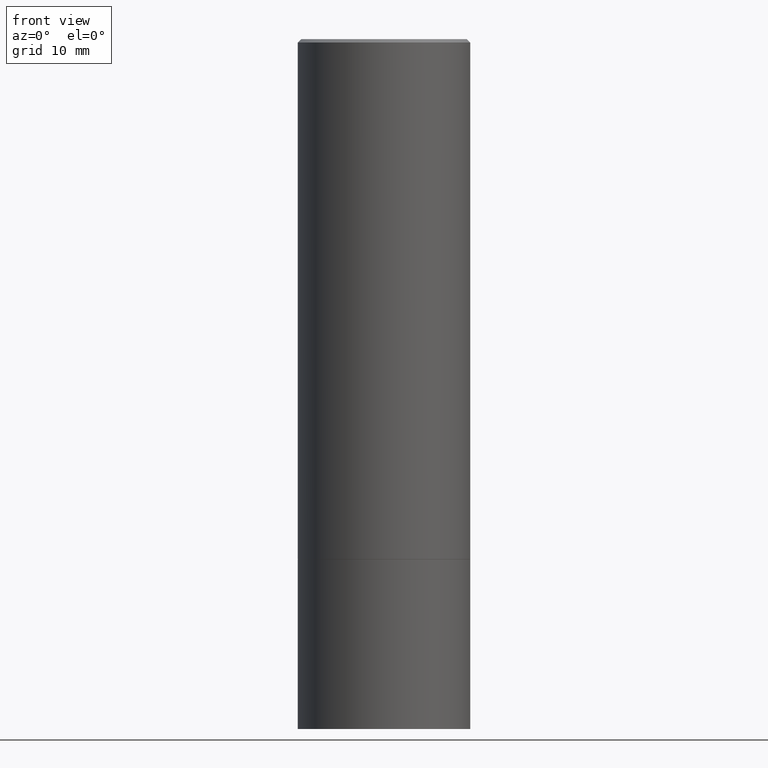
[diagram: clean part render]
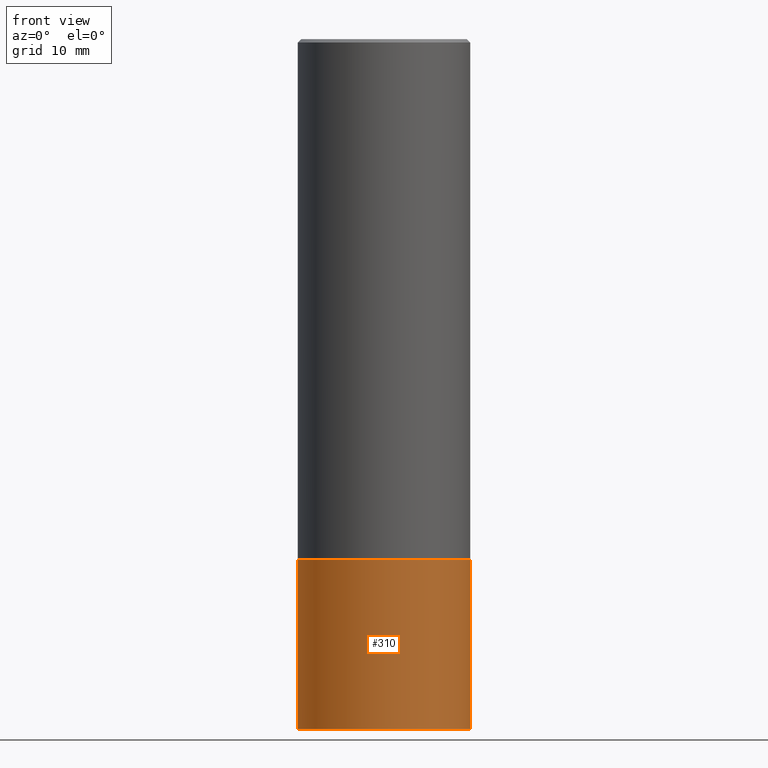
[diagram: same view with one face highlighted and labeled with its STEP entity id]
A machine part, front view. The second image highlights one B-rep face of the part: STEP entity #310.
In plain terms, the highlighted cylindrical surface (partial cylindrical patch) has radius 12.7 mm, axis along (-0, 0, 1).
Its self-contained STEP definition (entity closure, byte-faithful):
#11 = FACE_OUTER_BOUND ( 'NONE', #82, .T. ) ;
#12 = DIRECTION ( 'NONE',  ( -2.445468806185136597E-29, 3.491481338843145583E-15, 1.000000000000000000 ) ) ;
#46 = VERTEX_POINT ( 'NONE', #147 ) ;
#58 = DIRECTION ( 'NONE',  ( -2.445468806185136877E-29, 3.491481338843145188E-15, 1.000000000000000000 ) ) ;
#59 = CIRCLE ( 'NONE', #187, 0.5000000000000000000 ) ;
#65 = EDGE_CURVE ( 'NONE', #288, #200, #179, .T. ) ;
#82 = EDGE_LOOP ( 'NONE', ( #362, #371, #300, #386 ) ) ;
#90 = DIRECTION ( 'NONE',  ( -2.445468806185136597E-29, 3.491481338843145583E-15, 1.000000000000000000 ) ) ;
#102 = EDGE_CURVE ( 'NONE', #46, #288, #237, .T. ) ;
#126 = DIRECTION ( 'NONE',  ( 1.000000000000000000, -6.982962677686266711E-15, 4.876176775795935793E-29 ) ) ;
#133 = DIRECTION ( 'NONE',  ( -2.445468806185136597E-29, 3.491481338843145583E-15, 1.000000000000000000 ) ) ;
#142 = DIRECTION ( 'NONE',  ( 1.000000000000000000, -6.982962677686266711E-15, 0.000000000000000000 ) ) ;
#147 = CARTESIAN_POINT ( 'NONE',  ( -0.5000000000000026645, -1.047444401652943162E-14, -4.000000000000000000 ) ) ;
#151 = CARTESIAN_POINT ( 'NONE',  ( 7.374800278812517479E-29, -1.052926027354927551E-14, -3.015700000000000269 ) ) ;
#159 = CARTESIAN_POINT ( 'NONE',  ( 0.000000000000000000, 0.000000000000000000, 0.000000000000000000 ) ) ;
#160 = CARTESIAN_POINT ( 'NONE',  ( 0.5000000000000000000, -3.491481338843133355E-15, 2.438088387897967896E-29 ) ) ;
#179 = CIRCLE ( 'NONE', #243, 0.5000000000000000000 ) ;
#187 = AXIS2_PLACEMENT_3D ( 'NONE', #263, #133, #387 ) ;
#200 = VERTEX_POINT ( 'NONE', #336 ) ;
#205 = CARTESIAN_POINT ( 'NONE',  ( 0.5000000000000026645, -1.739617435425836547E-14, -4.000000000000000000 ) ) ;
#210 = CARTESIAN_POINT ( 'NONE',  ( -0.5000000000000000000, 3.552713678800500929E-15, -2.459467545127452891E-29 ) ) ;
#222 = DIRECTION ( 'NONE',  ( -2.445468806185136877E-29, 3.491481338843145188E-15, 1.000000000000000000 ) ) ;
#235 = AXIS2_PLACEMENT_3D ( 'NONE', #159, #12, #126 ) ;
#237 = LINE ( 'NONE', #210, #367 ) ;
#239 = VECTOR ( 'NONE', #222, 39.37007874015748143 ) ;
#241 = EDGE_CURVE ( 'NONE', #346, #200, #372, .T. ) ;
#243 = AXIS2_PLACEMENT_3D ( 'NONE', #151, #90, #142 ) ;
#263 = CARTESIAN_POINT ( 'NONE',  ( 9.781875224740546387E-29, -1.396592535537258233E-14, -4.000000000000000000 ) ) ;
#288 = VERTEX_POINT ( 'NONE', #368 ) ;
#300 = ORIENTED_EDGE ( 'NONE', *, *, #241, .T. ) ;
#307 = CYLINDRICAL_SURFACE ( 'NONE', #235, 0.5000000000000000000 ) ;
#310 = ADVANCED_FACE ( 'NONE', ( #11 ), #307, .T. ) ;
#336 = CARTESIAN_POINT ( 'NONE',  ( 0.5000000000000000000, -1.402074161239240887E-14, -3.015700000000000269 ) ) ;
#346 = VERTEX_POINT ( 'NONE', #205 ) ;
#362 = ORIENTED_EDGE ( 'NONE', *, *, #102, .F. ) ;
#367 = VECTOR ( 'NONE', #58, 39.37007874015748143 ) ;
#368 = CARTESIAN_POINT ( 'NONE',  ( -0.5000000000000000000, -8.694879135660427991E-15, -3.015700000000000269 ) ) ;
#371 = ORIENTED_EDGE ( 'NONE', *, *, #385, .T. ) ;
#372 = LINE ( 'NONE', #160, #239 ) ;
#385 = EDGE_CURVE ( 'NONE', #46, #346, #59, .T. ) ;
#386 = ORIENTED_EDGE ( 'NONE', *, *, #65, .F. ) ;
#387 = DIRECTION ( 'NONE',  ( 1.000000000000000000, -6.982962677686266711E-15, 0.000000000000000000 ) ) ;